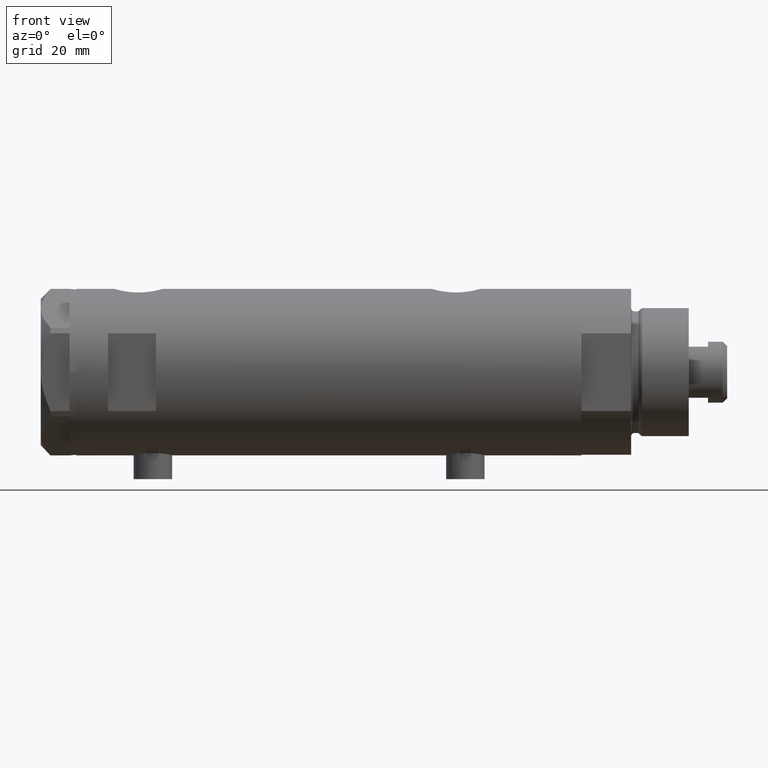
[diagram: clean part render]
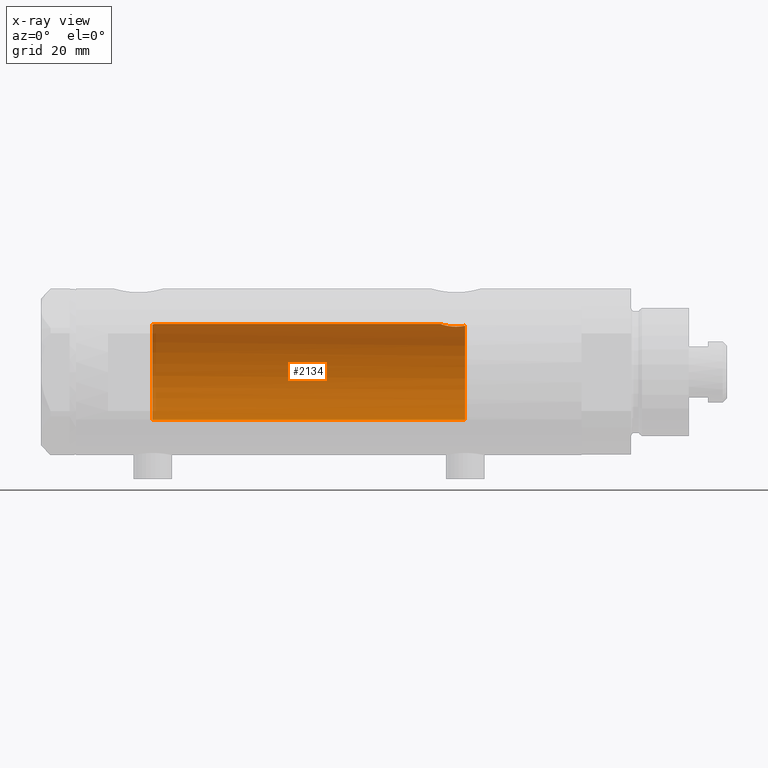
[diagram: x-ray — body ghosted, one internal face saturated and labeled with its STEP entity id]
A machine part, front view, then the same camera in x-ray: the body is ghosted and one INTERNAL B-rep face — a face not visible from any outside direction — is saturated and labeled: STEP entity #2134.
In plain terms, the highlighted cylindrical surface (partial cylindrical patch) has radius 15 mm, axis along (1, 0, -0).
Its self-contained STEP definition (entity closure, byte-faithful):
#30 = CARTESIAN_POINT ( 'NONE',  ( -15.00000000000000000, 0.000000000000000000, -42.55000000000000426 ) ) ;
#89 = CARTESIAN_POINT ( 'NONE',  ( 14.39420242489971535, 4.221147702577646932, -42.17871871185445087 ) ) ;
#130 = VERTEX_POINT ( 'NONE', #1475 ) ;
#169 = CARTESIAN_POINT ( 'NONE',  ( 14.33601656325283180, 4.414747171699214157, -37.69405684818107716 ) ) ;
#211 = CARTESIAN_POINT ( 'NONE',  ( 0.000000000000000000, 0.000000000000000000, 78.95000000000000284 ) ) ;
#212 = CARTESIAN_POINT ( 'NONE',  ( 14.25987224063200465, 4.654266980155760791, -38.31645838593740905 ) ) ;
#435 = ORIENTED_EDGE ( 'NONE', *, *, #925, .F. ) ;
#524 = DIRECTION ( 'NONE',  ( -1.000000000000000000, 0.000000000000000000, 0.000000000000000000 ) ) ;
#525 = CARTESIAN_POINT ( 'NONE',  ( 14.72004460873233000, 2.909758128378248987, -35.82614485536702631 ) ) ;
#555 = CARTESIAN_POINT ( 'NONE',  ( 14.25831405531604545, 4.659025730769700502, -41.16798855846089822 ) ) ;
#558 = ORIENTED_EDGE ( 'NONE', *, *, #3919, .T. ) ;
#577 = EDGE_CURVE ( 'NONE', #908, #3633, #670, .T. ) ;
#612 = CARTESIAN_POINT ( 'NONE',  ( 14.92022334814851270, 1.556082286439819828, 54.83634472570267349 ) ) ;
#622 = DIRECTION ( 'NONE',  ( -0.000000000000000000, -0.000000000000000000, -1.000000000000000000 ) ) ;
#648 = B_SPLINE_CURVE_WITH_KNOTS ( 'NONE', 3,
 ( #2797, #1355, #4005, #612, #2876, #4393, #1006, #2513 ),
 .UNSPECIFIED., .F., .F.,
 ( 4, 2, 2, 4 ),
 ( 0.02826119741494479559, 0.02885214443185066258, 0.02944309144875652956, 0.03062498548256826700 ),
 .UNSPECIFIED. ) ;
#670 = CIRCLE ( 'NONE', #3195, 15.00000000000000000 ) ;
#806 = CARTESIAN_POINT ( 'NONE',  ( 14.99509227038106296, 0.4430293709771138122, -34.90006686301529726 ) ) ;
#854 = LINE ( 'NONE', #1587, #2443 ) ;
#892 = CARTESIAN_POINT ( 'NONE',  ( 14.30582738521795072, 4.511024637967008033, -41.58517547595721453 ) ) ;
#908 = VERTEX_POINT ( 'NONE', #1130 ) ;
#925 = EDGE_CURVE ( 'NONE', #3120, #4001, #1391, .T. ) ;
#948 = CARTESIAN_POINT ( 'NONE',  ( 14.46277203719950855, 3.978470183374505975, -42.55000000000000426 ) ) ;
#963 = ORIENTED_EDGE ( 'NONE', *, *, #4405, .F. ) ;
#975 = CARTESIAN_POINT ( 'NONE',  ( 14.42796195111116830, 4.108450791336244023, -37.10736184290816198 ) ) ;
#979 = ORIENTED_EDGE ( 'NONE', *, *, #577, .T. ) ;
#982 = DIRECTION ( 'NONE',  ( 0.000000000000000000, 0.000000000000000000, 1.000000000000000000 ) ) ;
#1006 = CARTESIAN_POINT ( 'NONE',  ( 14.99999999999999822, 0.3998316629799389399, 54.58500000000000085 ) ) ;
#1041 = EDGE_LOOP ( 'NONE', ( #963, #2913, #979, #558, #4155, #435 ) ) ;
#1056 = EDGE_CURVE ( 'NONE', #4706, #4001, #1622, .T. ) ;
#1130 = CARTESIAN_POINT ( 'NONE',  ( 14.82638779339053947, 2.275571356824483082, 55.15000000000000568 ) ) ;
#1268 = FACE_OUTER_BOUND ( 'NONE', #1041, .T. ) ;
#1269 = CARTESIAN_POINT ( 'NONE',  ( 14.23996709707015818, 4.714409263334266242, -38.52876674044652816 ) ) ;
#1355 = CARTESIAN_POINT ( 'NONE',  ( 14.85285765243877698, 2.103108122960815507, 55.05873200114292842 ) ) ;
#1365 = LINE ( 'NONE', #4401, #4029 ) ;
#1391 = B_SPLINE_CURVE_WITH_KNOTS ( 'NONE', 3,
 ( #1946, #3552, #806, #2775, #2486, #3227, #3577, #1583, #3920, #525, #4341, #2847, #975, #169, #2020, #212, #1269, #1713, #4734, #2408, #4288, #3948, #555, #892, #3469, #89, #2685, #948 ),
 .UNSPECIFIED., .F., .F.,
 ( 4, 2, 2, 2, 2, 2, 2, 2, 2, 2, 2, 2, 2, 4 ),
 ( 0.01531448496322443745, 0.01597936247866482348, 0.01664423999410521299, 0.01730911750954559902, 0.01797399502498598853, 0.01930375005586676060, 0.02063350508674753614, 0.02129838260218791524, 0.02196326011762829433, 0.02329301514850904906, 0.02395789266394942815, 0.02462277017938980378, 0.02528764769483018288, 0.02595252521027056197 ),
 .UNSPECIFIED. ) ;
#1475 = CARTESIAN_POINT ( 'NONE',  ( 15.00000000000000000, 0.000000000000000000, 54.58500000000000085 ) ) ;
#1583 = CARTESIAN_POINT ( 'NONE',  ( 14.84719462287499958, 2.145357993387301043, -35.37798666051606489 ) ) ;
#1587 = CARTESIAN_POINT ( 'NONE',  ( 15.00000000000000000, 1.836970198721029589E-15, 78.95000000000000284 ) ) ;
#1622 = CIRCLE ( 'NONE', #4390, 15.00000000000000000 ) ;
#1704 = AXIS2_PLACEMENT_3D ( 'NONE', #211, #4365, #524 ) ;
#1713 = CARTESIAN_POINT ( 'NONE',  ( 14.19413554982521219, 4.851369549374611623, -39.17746179061393264 ) ) ;
#1725 = CARTESIAN_POINT ( 'NONE',  ( 15.00000000000000000, 5.959273468635536151E-16, -34.88499999999999801 ) ) ;
#1746 = CARTESIAN_POINT ( 'NONE',  ( 0.000000000000000000, 0.000000000000000000, 55.15000000000000568 ) ) ;
#1815 = DIRECTION ( 'NONE',  ( 0.000000000000000000, 0.000000000000000000, -1.000000000000000000 ) ) ;
#1946 = CARTESIAN_POINT ( 'NONE',  ( 15.00000000000000000, 5.959273468635536151E-16, -34.88499999999999801 ) ) ;
#2020 = CARTESIAN_POINT ( 'NONE',  ( 14.30778609824508152, 4.504821240468950272, -37.89964104205774476 ) ) ;
#2125 = CARTESIAN_POINT ( 'NONE',  ( 0.000000000000000000, 0.000000000000000000, -42.55000000000000426 ) ) ;
#2134 = ADVANCED_FACE ( 'NONE', ( #1268 ), #3918, .F. ) ;
#2408 = CARTESIAN_POINT ( 'NONE',  ( 14.19789541567450364, 4.839422427565552631, -40.29531557750247117 ) ) ;
#2443 = VECTOR ( 'NONE', #3092, 1000.000000000000000 ) ;
#2486 = CARTESIAN_POINT ( 'NONE',  ( 14.96070684509191295, 1.105917936056761253, -35.00719211967314237 ) ) ;
#2513 = CARTESIAN_POINT ( 'NONE',  ( 15.00000000000000000, 0.000000000000000000, 54.58500000000000085 ) ) ;
#2685 = CARTESIAN_POINT ( 'NONE',  ( 14.42780822725581125, 4.105572710089619548, -42.36940228115440732 ) ) ;
#2775 = CARTESIAN_POINT ( 'NONE',  ( 14.97547159671691475, 0.8856171163179413774, -34.96107436056316686 ) ) ;
#2797 = CARTESIAN_POINT ( 'NONE',  ( 14.82638779339053947, 2.275571356824483082, 55.15000000000000568 ) ) ;
#2847 = CARTESIAN_POINT ( 'NONE',  ( 14.49939476291675078, 3.855488469592460277, -36.74998822577914837 ) ) ;
#2854 = DIRECTION ( 'NONE',  ( 1.000000000000000000, 0.000000000000000000, 0.000000000000000000 ) ) ;
#2876 = CARTESIAN_POINT ( 'NONE',  ( 14.93895715383719569, 1.365440931094926480, 54.77638192761232716 ) ) ;
#2913 = ORIENTED_EDGE ( 'NONE', *, *, #3511, .F. ) ;
#3092 = DIRECTION ( 'NONE',  ( -0.000000000000000000, -0.000000000000000000, -1.000000000000000000 ) ) ;
#3120 = VERTEX_POINT ( 'NONE', #1725 ) ;
#3195 = AXIS2_PLACEMENT_3D ( 'NONE', #1746, #982, #2854 ) ;
#3227 = CARTESIAN_POINT ( 'NONE',  ( 14.92306512695867049, 1.532295990539004116, -35.12730056478244478 ) ) ;
#3469 = CARTESIAN_POINT ( 'NONE',  ( 14.33334483745703203, 4.423389780079196143, -41.78724945987951855 ) ) ;
#3511 = EDGE_CURVE ( 'NONE', #908, #130, #648, .T. ) ;
#3552 = CARTESIAN_POINT ( 'NONE',  ( 14.99999999999999822, 0.2215872191885691345, -34.88500000000000512 ) ) ;
#3577 = CARTESIAN_POINT ( 'NONE',  ( 14.90012193493785198, 1.740148100968098577, -35.20148967824482611 ) ) ;
#3633 = VERTEX_POINT ( 'NONE', #4137 ) ;
#3652 = DIRECTION ( 'NONE',  ( -1.000000000000000000, 0.000000000000000000, 0.000000000000000000 ) ) ;
#3918 = CYLINDRICAL_SURFACE ( 'NONE', #1704, 15.00000000000000000 ) ;
#3919 = EDGE_CURVE ( 'NONE', #3633, #4706, #1365, .T. ) ;
#3920 = CARTESIAN_POINT ( 'NONE',  ( 14.81695028448457130, 2.344053258630407033, -35.48122781573722051 ) ) ;
#3948 = CARTESIAN_POINT ( 'NONE',  ( 14.23822651595894584, 4.719656459720482644, -40.95110225956646843 ) ) ;
#4001 = VERTEX_POINT ( 'NONE', #4376 ) ;
#4005 = CARTESIAN_POINT ( 'NONE',  ( 14.87714698525761214, 1.924825815456623568, 54.97761219789977361 ) ) ;
#4029 = VECTOR ( 'NONE', #622, 1000.000000000000000 ) ;
#4137 = CARTESIAN_POINT ( 'NONE',  ( -15.00000000000000000, 0.000000000000000000, 55.15000000000000568 ) ) ;
#4155 = ORIENTED_EDGE ( 'NONE', *, *, #1056, .T. ) ;
#4288 = CARTESIAN_POINT ( 'NONE',  ( 14.20808274384303971, 4.809639920165276195, -40.51496246579131366 ) ) ;
#4341 = CARTESIAN_POINT ( 'NONE',  ( 14.64710079709035107, 3.249565827911971017, -36.10237283776275063 ) ) ;
#4365 = DIRECTION ( 'NONE',  ( -0.000000000000000000, -0.000000000000000000, -1.000000000000000000 ) ) ;
#4376 = CARTESIAN_POINT ( 'NONE',  ( 14.46277203719950855, 3.978470183374505975, -42.55000000000000426 ) ) ;
#4390 = AXIS2_PLACEMENT_3D ( 'NONE', #2125, #1815, #3652 ) ;
#4393 = CARTESIAN_POINT ( 'NONE',  ( 14.98404286071220781, 0.7911628595372691697, 54.63357750803344004 ) ) ;
#4401 = CARTESIAN_POINT ( 'NONE',  ( -15.00000000000000000, 0.000000000000000000, 78.95000000000000284 ) ) ;
#4405 = EDGE_CURVE ( 'NONE', #130, #3120, #854, .T. ) ;
#4706 = VERTEX_POINT ( 'NONE', #30 ) ;
#4734 = CARTESIAN_POINT ( 'NONE',  ( 14.18274079043653124, 4.883732009304969424, -39.63167541567704433 ) ) ;